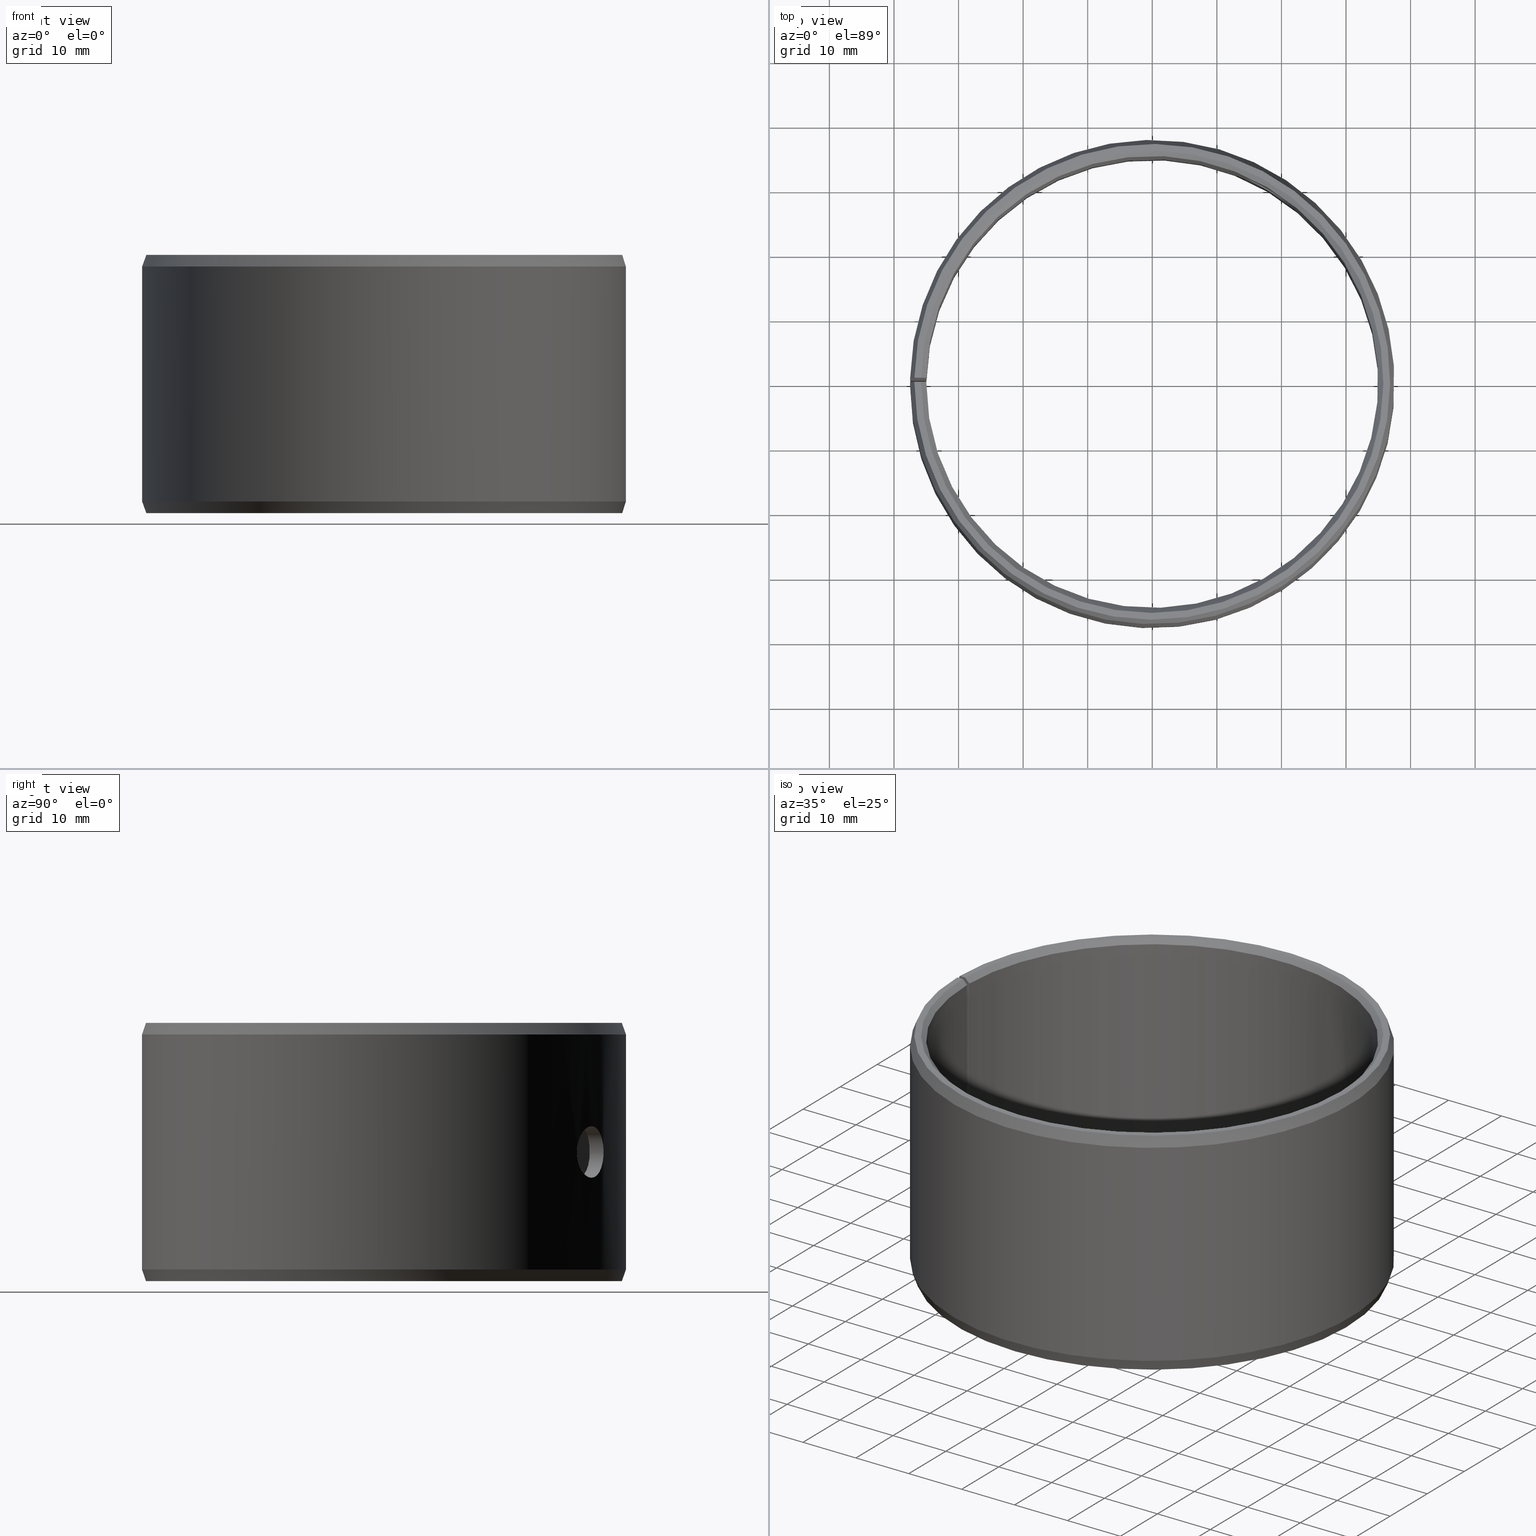
[diagram: canonical four-view strip — front | top / right | iso, engineering-drawing reading convention]
A machine part, canonical four-view strip (front | top / right | iso — engineering-drawing reading convention). The complete STEP part file that produces these views, byte-faithful:
ISO-10303-21;
HEADER;
FILE_DESCRIPTION(('STEP AP203'),'1');
FILE_NAME('440-POM7040LMB.stp','2016-09-21T01:21:44',(' '),(' '),'Spatial InterOp 3D',' ',' ');
FILE_SCHEMA(('CONFIG_CONTROL_DESIGN'));
ENDSEC;
DATA;
#1=DESIGN_CONTEXT('',#51,'design');
#2=APPLICATION_PROTOCOL_DEFINITION('INTERNATIONAL STANDARD','config_control_design',1994,#51);
#3=PRODUCT_CATEGORY_RELATIONSHIP('NONE','NONE',#52,#53);
#4=DATE_AND_TIME(#54,#55);
#5=DATE_TIME_ROLE('creation_date');
#6=DATE_TIME_ROLE('classification_date');
#7=PERSON_AND_ORGANIZATION_ROLE('creator');
#8=PERSON_AND_ORGANIZATION_ROLE('design_supplier');
#9=PERSON_AND_ORGANIZATION_ROLE('classification_officer');
#10=PERSON_AND_ORGANIZATION_ROLE('design_owner');
#11=APPROVAL_PERSON_ORGANIZATION(#56,#57,#58);
#12=APPROVAL_DATE_TIME(#4,#57);
#13=CC_DESIGN_APPROVAL(#57,(#59,#60,#61));
#14=CC_DESIGN_DATE_AND_TIME_ASSIGNMENT(#4,#5,(#61));
#15=CC_DESIGN_DATE_AND_TIME_ASSIGNMENT(#4,#6,(#59));
#16=CC_DESIGN_PERSON_AND_ORGANIZATION_ASSIGNMENT(#56,#10,(#62));
#17=CC_DESIGN_PERSON_AND_ORGANIZATION_ASSIGNMENT(#56,#7,(#61));
#18=CC_DESIGN_PERSON_AND_ORGANIZATION_ASSIGNMENT(#56,#7,(#60));
#19=CC_DESIGN_PERSON_AND_ORGANIZATION_ASSIGNMENT(#56,#8,(#60));
#20=CC_DESIGN_SECURITY_CLASSIFICATION(#59,(#60));
#21=CC_DESIGN_PERSON_AND_ORGANIZATION_ASSIGNMENT(#56,#9,(#59));
#22=SHAPE_DEFINITION_REPRESENTATION(#63,#64);
#23=DESIGN_CONTEXT('',#65,'design');
#24=APPLICATION_PROTOCOL_DEFINITION('INTERNATIONAL STANDARD','config_control_design',1994,#65);
#25=PRODUCT_CATEGORY_RELATIONSHIP('NONE','NONE',#66,#67);
#26=DATE_AND_TIME(#68,#69);
#27=DATE_TIME_ROLE('creation_date');
#28=DATE_TIME_ROLE('classification_date');
#29=PERSON_AND_ORGANIZATION_ROLE('creator');
#30=PERSON_AND_ORGANIZATION_ROLE('design_supplier');
#31=PERSON_AND_ORGANIZATION_ROLE('classification_officer');
#32=PERSON_AND_ORGANIZATION_ROLE('design_owner');
#33=APPROVAL_PERSON_ORGANIZATION(#70,#71,#72);
#34=APPROVAL_DATE_TIME(#26,#71);
#35=CC_DESIGN_APPROVAL(#71,(#73,#74,#75));
#36=CC_DESIGN_DATE_AND_TIME_ASSIGNMENT(#26,#27,(#75));
#37=CC_DESIGN_DATE_AND_TIME_ASSIGNMENT(#26,#28,(#73));
#38=CC_DESIGN_PERSON_AND_ORGANIZATION_ASSIGNMENT(#70,#32,(#76));
#39=CC_DESIGN_PERSON_AND_ORGANIZATION_ASSIGNMENT(#70,#29,(#75));
#40=CC_DESIGN_PERSON_AND_ORGANIZATION_ASSIGNMENT(#70,#29,(#74));
#41=CC_DESIGN_PERSON_AND_ORGANIZATION_ASSIGNMENT(#70,#30,(#74));
#42=CC_DESIGN_SECURITY_CLASSIFICATION(#73,(#74));
#43=CC_DESIGN_PERSON_AND_ORGANIZATION_ASSIGNMENT(#70,#31,(#73));
#44=CONTEXT_DEPENDENT_SHAPE_REPRESENTATION(#77,#78);
#45=SHAPE_DEFINITION_REPRESENTATION(#79,#80);
#46=SHAPE_REPRESENTATION_RELATIONSHIP('NONE','NONE',#80,#81);
#47= (GEOMETRIC_REPRESENTATION_CONTEXT(3)GLOBAL_UNCERTAINTY_ASSIGNED_CONTEXT((#84))GLOBAL_UNIT_ASSIGNED_CONTEXT((#86,#87,#88))REPRESENTATION_CONTEXT('NONE','WORKSPACE'));
#51=APPLICATION_CONTEXT('CONFIGURATION CONTROLLED 3D DESIGNS OF MECHANICAL PARTS AND ASSEMBLIES');
#52=PRODUCT_CATEGORY('part','NONE');
#53=PRODUCT_RELATED_PRODUCT_CATEGORY('detail',' ',(#62));
#54=CALENDAR_DATE(2016,21,8);
#55=LOCAL_TIME(3,21,44.0,#90);
#56=PERSON_AND_ORGANIZATION(#91,#92);
#57=APPROVAL(#93,'SOLID MODEL');
#58=APPROVAL_ROLE('APPROVED');
#59=SECURITY_CLASSIFICATION('','',#94);
#60=PRODUCT_DEFINITION_FORMATION_WITH_SPECIFIED_SOURCE(' ','NONE',#62,.NOT_KNOWN.);
#61=PRODUCT_DEFINITION('NONE','NONE',#60,#1);
#62=PRODUCT('','','PART--DESC',(#95));
#63=PRODUCT_DEFINITION_SHAPE('NONE','NONE',#61);
#64=SHAPE_REPRESENTATION('',(#96,#97),#98);
#65=APPLICATION_CONTEXT('CONFIGURATION CONTROLLED 3D DESIGNS OF MECHANICAL PARTS AND ASSEMBLIES');
#66=PRODUCT_CATEGORY('part','NONE');
#67=PRODUCT_RELATED_PRODUCT_CATEGORY('detail',' ',(#76));
#68=CALENDAR_DATE(2016,21,8);
#69=LOCAL_TIME(3,21,44.0,#99);
#70=PERSON_AND_ORGANIZATION(#100,#101);
#71=APPROVAL(#102,'SOLID MODEL');
#72=APPROVAL_ROLE('APPROVED');
#73=SECURITY_CLASSIFICATION('','',#103);
#74=PRODUCT_DEFINITION_FORMATION_WITH_SPECIFIED_SOURCE(' ','NONE',#76,.NOT_KNOWN.);
#75=PRODUCT_DEFINITION('440-POM7040LMB','440-POM7040LMB',#74,#23);
#76=PRODUCT('440-POM7040LMB','440-POM7040LMB','PART-440-POM7040LMB-DESC',(#104));
#77=(REPRESENTATION_RELATIONSHIP('','',#80,#64)REPRESENTATION_RELATIONSHIP_WITH_TRANSFORMATION(#107)SHAPE_REPRESENTATION_RELATIONSHIP());
#78=PRODUCT_DEFINITION_SHAPE('NAUO-PROD-DEF','NAUO-PROD-DEF',#109);
#79=PRODUCT_DEFINITION_SHAPE('NONE','NONE',#75);
#80=SHAPE_REPRESENTATION('440-POM7040LMB',(#96),#98);
#81=ADVANCED_BREP_SHAPE_REPRESENTATION('',(#110),#47);
#84=UNCERTAINTY_MEASURE_WITH_UNIT(LENGTH_MEASURE(1.0E-006),#86,'','');
#86= (CONVERSION_BASED_UNIT('METRE',#113)LENGTH_UNIT()NAMED_UNIT(#116));
#87= (NAMED_UNIT(#118)PLANE_ANGLE_UNIT()SI_UNIT($,.RADIAN.));
#88= (NAMED_UNIT(#118)SOLID_ANGLE_UNIT()SI_UNIT($,.STERADIAN.));
#90=COORDINATED_UNIVERSAL_TIME_OFFSET(1,0,.AHEAD.);
#91=PERSON('','UNSPECIFIED',$,$,$,$);
#92=ORGANIZATION('UNSPECIFIED','UNSPECIFIED','UNSPECIFIED');
#93=APPROVAL_STATUS('approved');
#94=SECURITY_CLASSIFICATION_LEVEL('unclassified');
#95=MECHANICAL_CONTEXT('',#51,'mechanical');
#96=AXIS2_PLACEMENT_3D('',#124,#125,#126);
#97=AXIS2_PLACEMENT_3D('',#127,#128,#129);
#98= (GEOMETRIC_REPRESENTATION_CONTEXT(3)GLOBAL_UNCERTAINTY_ASSIGNED_CONTEXT((#132))GLOBAL_UNIT_ASSIGNED_CONTEXT((#134,#135,#136))REPRESENTATION_CONTEXT('NONE','WORKSPACE'));
#99=COORDINATED_UNIVERSAL_TIME_OFFSET(1,0,.AHEAD.);
#100=PERSON('','UNSPECIFIED',$,$,$,$);
#101=ORGANIZATION('UNSPECIFIED','UNSPECIFIED','UNSPECIFIED');
#102=APPROVAL_STATUS('approved');
#103=SECURITY_CLASSIFICATION_LEVEL('unclassified');
#104=MECHANICAL_CONTEXT('',#65,'mechanical');
#107=ITEM_DEFINED_TRANSFORMATION('','',#96,#97);
#109=NEXT_ASSEMBLY_USAGE_OCCURRENCE('440-POM7040LMB','440-POM7040LMB','440-POM7040LMB',#61,#75,$);
#110=MANIFOLD_SOLID_BREP('',#138);
#113=LENGTH_MEASURE_WITH_UNIT(LENGTH_MEASURE(1.0),#139);
#116=DIMENSIONAL_EXPONENTS(1.0,0.0,0.0,0.0,0.0,0.0,0.0);
#118=DIMENSIONAL_EXPONENTS(0.0,0.0,0.0,0.0,0.0,0.0,0.0);
#124=CARTESIAN_POINT('',(0.0,0.0,0.0));
#125=DIRECTION('',(0.0,0.0,1.0));
#126=DIRECTION('',(1.0,0.0,0.0));
#127=CARTESIAN_POINT('',(0.0,0.0,0.0));
#128=DIRECTION('',(5.48707263966374E-016,-5.48707263966376E-016,1.0));
#129=DIRECTION('',(1.39349996950756E-015,1.0,5.48707263966375E-016));
#132=UNCERTAINTY_MEASURE_WITH_UNIT(LENGTH_MEASURE(1.0E-006),#134,'','');
#134= (CONVERSION_BASED_UNIT('METRE',#142)LENGTH_UNIT()NAMED_UNIT(#145));
#135= (NAMED_UNIT(#147)PLANE_ANGLE_UNIT()SI_UNIT($,.RADIAN.));
#136= (NAMED_UNIT(#147)SOLID_ANGLE_UNIT()SI_UNIT($,.STERADIAN.));
#138=CLOSED_SHELL('',(#153,#154,#155,#156,#157,#158,#159,#160,#161,#162,#163));
#139= (NAMED_UNIT(#116)LENGTH_UNIT()SI_UNIT($,.METRE.));
#142=LENGTH_MEASURE_WITH_UNIT(LENGTH_MEASURE(1.0),#165);
#145=DIMENSIONAL_EXPONENTS(1.0,0.0,0.0,0.0,0.0,0.0,0.0);
#147=DIMENSIONAL_EXPONENTS(0.0,0.0,0.0,0.0,0.0,0.0,0.0);
#153=ADVANCED_FACE('',(#166),#167,.F.);
#154=ADVANCED_FACE('',(#168),#169,.T.);
#155=ADVANCED_FACE('',(#170),#171,.T.);
#156=ADVANCED_FACE('',(#172),#173,.T.);
#157=ADVANCED_FACE('',(#174),#175,.T.);
#158=ADVANCED_FACE('',(#176),#177,.F.);
#159=ADVANCED_FACE('',(#178),#179,.T.);
#160=ADVANCED_FACE('',(#180),#181,.F.);
#161=ADVANCED_FACE('',(#182,#183),#184,.F.);
#162=ADVANCED_FACE('',(#185,#186),#187,.T.);
#163=ADVANCED_FACE('',(#188,#189),#190,.F.);
#165= (NAMED_UNIT(#145)LENGTH_UNIT()SI_UNIT($,.METRE.));
#166=FACE_OUTER_BOUND('',#192,.T.);
#167=CONICAL_SURFACE('',#193,0.035,0.785398163397448);
#168=FACE_OUTER_BOUND('',#194,.T.);
#169=PLANE('',#195);
#170=FACE_OUTER_BOUND('',#196,.T.);
#171=CONICAL_SURFACE('',#197,0.0368448535783208,0.349065850398873);
#172=FACE_OUTER_BOUND('',#198,.T.);
#173=CONICAL_SURFACE('',#199,0.0375,0.349065850398874);
#174=FACE_OUTER_BOUND('',#200,.T.);
#175=PLANE('',#201);
#176=FACE_OUTER_BOUND('',#202,.T.);
#177=CONICAL_SURFACE('',#203,0.0358,0.785398163397453);
#178=FACE_OUTER_BOUND('',#204,.T.);
#179=PLANE('',#205);
#180=FACE_OUTER_BOUND('',#206,.T.);
#181=PLANE('',#207);
#182=FACE_OUTER_BOUND('',#208,.T.);
#183=FACE_BOUND('',#209,.T.);
#184=CYLINDRICAL_SURFACE('',#210,0.035);
#185=FACE_OUTER_BOUND('',#211,.T.);
#186=FACE_BOUND('',#212,.T.);
#187=CYLINDRICAL_SURFACE('',#213,0.0375);
#188=FACE_OUTER_BOUND('',#214,.T.);
#189=FACE_OUTER_BOUND('',#215,.T.);
#190=CYLINDRICAL_SURFACE('',#216,0.004);
#192=EDGE_LOOP('',(#217,#218,#219,#220));
#193=AXIS2_PLACEMENT_3D('',#221,#222,#223);
#194=EDGE_LOOP('',(#224,#225,#226,#227));
#195=AXIS2_PLACEMENT_3D('',#228,#229,#230);
#196=EDGE_LOOP('',(#231,#232,#233,#234));
#197=AXIS2_PLACEMENT_3D('',#235,#236,#237);
#198=EDGE_LOOP('',(#238,#239,#240,#241));
#199=AXIS2_PLACEMENT_3D('',#242,#243,#244);
#200=EDGE_LOOP('',(#245,#246,#247,#248));
#201=AXIS2_PLACEMENT_3D('',#249,#250,#251);
#202=EDGE_LOOP('',(#252,#253,#254,#255));
#203=AXIS2_PLACEMENT_3D('',#256,#257,#258);
#204=EDGE_LOOP('',(#259,#260,#261,#262,#263,#264,#265,#266));
#205=AXIS2_PLACEMENT_3D('',#267,#268,#269);
#206=EDGE_LOOP('',(#270,#271,#272,#273,#274,#275,#276,#277));
#207=AXIS2_PLACEMENT_3D('',#278,#279,#280);
#208=EDGE_LOOP('',(#281,#282,#283,#284));
#209=EDGE_LOOP('',(#285));
#210=AXIS2_PLACEMENT_3D('',#286,#287,#288);
#211=EDGE_LOOP('',(#289,#290,#291,#292));
#212=EDGE_LOOP('',(#293));
#213=AXIS2_PLACEMENT_3D('',#294,#295,#296);
#214=EDGE_LOOP('',(#297));
#215=EDGE_LOOP('',(#298));
#216=AXIS2_PLACEMENT_3D('',#299,#300,#301);
#217=ORIENTED_EDGE('',*,*,#302,.T.);
#218=ORIENTED_EDGE('',*,*,#303,.F.);
#219=ORIENTED_EDGE('',*,*,#304,.F.);
#220=ORIENTED_EDGE('',*,*,#305,.T.);
#221=CARTESIAN_POINT('',(-6.93889390390723E-018,-6.93889390390723E-018,0.0008));
#222=DIRECTION('',(6.12323399573677E-017,-0.0,-1.0));
#223=DIRECTION('',(-1.0,0.0,-6.12323399573677E-017));
#224=ORIENTED_EDGE('',*,*,#306,.T.);
#225=ORIENTED_EDGE('',*,*,#307,.F.);
#226=ORIENTED_EDGE('',*,*,#302,.F.);
#227=ORIENTED_EDGE('',*,*,#308,.T.);
#228=CARTESIAN_POINT('',(0.000624796150454745,0.0357945474865988,-1.59523783355753E-020));
#229=DIRECTION('',(6.12323399573677E-017,0.0,-1.0));
#230=DIRECTION('',(-1.0,0.0,-6.12323399573677E-017));
#231=ORIENTED_EDGE('',*,*,#309,.T.);
#232=ORIENTED_EDGE('',*,*,#310,.F.);
#233=ORIENTED_EDGE('',*,*,#306,.F.);
#234=ORIENTED_EDGE('',*,*,#311,.T.);
#235=CARTESIAN_POINT('',(-6.93889390390723E-018,-6.93889390390723E-018,-3.61111864572607E-035));
#236=DIRECTION('',(-6.12323399573677E-017,0.0,1.0));
#237=DIRECTION('',(1.0,0.0,6.12323399573677E-017));
#238=ORIENTED_EDGE('',*,*,#312,.T.);
#239=ORIENTED_EDGE('',*,*,#313,.F.);
#240=ORIENTED_EDGE('',*,*,#314,.F.);
#241=ORIENTED_EDGE('',*,*,#315,.T.);
#242=CARTESIAN_POINT('',(-8.67361737988404E-018,-6.93889390390723E-018,0.0382));
#243=DIRECTION('',(6.12323399573677E-017,-0.0,-1.0));
#244=DIRECTION('',(-1.0,0.0,-6.12323399573677E-017));
#245=ORIENTED_EDGE('',*,*,#316,.T.);
#246=ORIENTED_EDGE('',*,*,#317,.T.);
#247=ORIENTED_EDGE('',*,*,#318,.F.);
#248=ORIENTED_EDGE('',*,*,#312,.F.);
#249=CARTESIAN_POINT('',(0.000643031359771049,0.0368392419286588,0.04));
#250=DIRECTION('',(-6.12323399573677E-017,0.0,1.0));
#251=DIRECTION('',(1.0,0.0,6.12323399573677E-017));
#252=ORIENTED_EDGE('',*,*,#319,.T.);
#253=ORIENTED_EDGE('',*,*,#320,.F.);
#254=ORIENTED_EDGE('',*,*,#317,.F.);
#255=ORIENTED_EDGE('',*,*,#321,.T.);
#256=CARTESIAN_POINT('',(-8.67361737988404E-018,-6.93889390390723E-018,0.04));
#257=DIRECTION('',(-6.12323399573677E-017,0.0,1.0));
#258=DIRECTION('',(1.0,0.0,6.12323399573677E-017));
#259=ORIENTED_EDGE('',*,*,#320,.T.);
#260=ORIENTED_EDGE('',*,*,#322,.T.);
#261=ORIENTED_EDGE('',*,*,#303,.T.);
#262=ORIENTED_EDGE('',*,*,#307,.T.);
#263=ORIENTED_EDGE('',*,*,#310,.T.);
#264=ORIENTED_EDGE('',*,*,#323,.T.);
#265=ORIENTED_EDGE('',*,*,#313,.T.);
#266=ORIENTED_EDGE('',*,*,#318,.T.);
#267=CARTESIAN_POINT('',(-6.93889390390723E-018,-0.014,0.0));
#268=DIRECTION('',(1.0,0.0,0.0));
#269=DIRECTION('',(0.0,0.0,-1.0));
#270=ORIENTED_EDGE('',*,*,#321,.F.);
#271=ORIENTED_EDGE('',*,*,#316,.F.);
#272=ORIENTED_EDGE('',*,*,#315,.F.);
#273=ORIENTED_EDGE('',*,*,#324,.F.);
#274=ORIENTED_EDGE('',*,*,#311,.F.);
#275=ORIENTED_EDGE('',*,*,#308,.F.);
#276=ORIENTED_EDGE('',*,*,#305,.F.);
#277=ORIENTED_EDGE('',*,*,#325,.F.);
#278=CARTESIAN_POINT('',(-0.000244333690121977,-0.0139978677321895,-1.49611235765866E-020));
#279=DIRECTION('',(0.999847695156391,-0.0174524064372836,-9.3259819610035E-021));
#280=DIRECTION('',(9.32598196100733E-021,1.0686516840419E-018,-1.0));
#281=ORIENTED_EDGE('',*,*,#304,.T.);
#282=ORIENTED_EDGE('',*,*,#322,.F.);
#283=ORIENTED_EDGE('',*,*,#319,.F.);
#284=ORIENTED_EDGE('',*,*,#325,.T.);
#285=ORIENTED_EDGE('',*,*,#326,.T.);
#286=CARTESIAN_POINT('',(-6.93889390390723E-018,-6.93889390390723E-018,0.0));
#287=DIRECTION('',(6.12323399573677E-017,0.0,-1.0));
#288=DIRECTION('',(-1.0,0.0,-6.12323399573677E-017));
#289=ORIENTED_EDGE('',*,*,#314,.T.);
#290=ORIENTED_EDGE('',*,*,#323,.F.);
#291=ORIENTED_EDGE('',*,*,#309,.F.);
#292=ORIENTED_EDGE('',*,*,#324,.T.);
#293=ORIENTED_EDGE('',*,*,#327,.T.);
#294=CARTESIAN_POINT('',(-6.93889390390723E-018,-6.93889390390723E-018,0.0));
#295=DIRECTION('',(6.12323399573677E-017,0.0,-1.0));
#296=DIRECTION('',(-1.0,0.0,-6.12323399573677E-017));
#297=ORIENTED_EDGE('',*,*,#326,.F.);
#298=ORIENTED_EDGE('',*,*,#327,.F.);
#299=CARTESIAN_POINT('',(0.0278579372728771,-0.0167387374344795,0.02));
#300=DIRECTION('',(0.85716730070391,-0.515038074907062,0.0));
#301=DIRECTION('',(-0.515038074907062,-0.85716730070391,0.0));
#302=EDGE_CURVE('',#328,#329,#330,.T.);
#303=EDGE_CURVE('',#331,#329,#332,.T.);
#304=EDGE_CURVE('',#333,#331,#334,.T.);
#305=EDGE_CURVE('',#333,#328,#335,.T.);
#306=EDGE_CURVE('',#336,#337,#338,.T.);
#307=EDGE_CURVE('',#329,#337,#339,.T.);
#308=EDGE_CURVE('',#328,#336,#340,.T.);
#309=EDGE_CURVE('',#341,#342,#343,.T.);
#310=EDGE_CURVE('',#337,#342,#344,.T.);
#311=EDGE_CURVE('',#336,#341,#345,.T.);
#312=EDGE_CURVE('',#346,#347,#348,.T.);
#313=EDGE_CURVE('',#349,#347,#350,.T.);
#314=EDGE_CURVE('',#351,#349,#352,.T.);
#315=EDGE_CURVE('',#351,#346,#353,.T.);
#316=EDGE_CURVE('',#346,#354,#355,.T.);
#317=EDGE_CURVE('',#354,#356,#357,.T.);
#318=EDGE_CURVE('',#347,#356,#358,.T.);
#319=EDGE_CURVE('',#359,#360,#361,.T.);
#320=EDGE_CURVE('',#356,#360,#362,.T.);
#321=EDGE_CURVE('',#354,#359,#363,.T.);
#322=EDGE_CURVE('',#360,#331,#364,.T.);
#323=EDGE_CURVE('',#342,#349,#365,.T.);
#324=EDGE_CURVE('',#341,#351,#366,.T.);
#325=EDGE_CURVE('',#359,#333,#367,.T.);
#326=EDGE_CURVE('',#368,#368,#369,.T.);
#327=EDGE_CURVE('',#370,#370,#371,.T.);
#328=VERTEX_POINT('',#372);
#329=VERTEX_POINT('',#373);
#330=CIRCLE('',#374,0.0358);
#331=VERTEX_POINT('',#375);
#332=LINE('',#376,#377);
#333=VERTEX_POINT('',#378);
#334=CIRCLE('',#379,0.035);
#335=LINE('',#380,#381);
#336=VERTEX_POINT('',#382);
#337=VERTEX_POINT('',#383);
#338=CIRCLE('',#384,0.0368448535783208);
#339=LINE('',#385,#386);
#340=LINE('',#387,#388);
#341=VERTEX_POINT('',#389);
#342=VERTEX_POINT('',#390);
#343=CIRCLE('',#391,0.0375);
#344=LINE('',#392,#393);
#345=LINE('',#394,#395);
#346=VERTEX_POINT('',#396);
#347=VERTEX_POINT('',#397);
#348=CIRCLE('',#398,0.0368448535783208);
#349=VERTEX_POINT('',#399);
#350=LINE('',#400,#401);
#351=VERTEX_POINT('',#402);
#352=CIRCLE('',#403,0.0375);
#353=LINE('',#404,#405);
#354=VERTEX_POINT('',#406);
#355=LINE('',#407,#408);
#356=VERTEX_POINT('',#409);
#357=CIRCLE('',#410,0.0358);
#358=LINE('',#411,#412);
#359=VERTEX_POINT('',#413);
#360=VERTEX_POINT('',#414);
#361=CIRCLE('',#415,0.035);
#362=LINE('',#416,#417);
#363=LINE('',#418,#419);
#364=LINE('',#420,#421);
#365=LINE('',#422,#423);
#366=LINE('',#424,#425);
#367=LINE('',#426,#427);
#368=VERTEX_POINT('',#428);
#369=B_SPLINE_CURVE_WITH_KNOTS('',3,(#429,#430,#431,#432,#433,#434,#435,#436,#437,#438,#439,#440,#441,#442,#443,#444,#445,#446,#447,#448,#449,#450,#451,#452,#453,#454,#455,#456,#457,#458,#459,#460,#461,#462,#463,#464,#465,#466,#467,#468,#469,#470,#471,#472,#473,#474,#475,#476,#477,#478,#479,#480,#481,#482,#483,#484,#485,#486,#487,#488,#489,#490,#491,#492,#493,#494),.UNSPECIFIED.,.T.,.F.,(2,2,2,2,2,2,2,2,2,2,2,2,2,2,2,2,2,2,2,2,2,2,2,2,2,2,2,2,2,2,2,2,2,2,2),(-0.00078215963741945,0.0,0.00078215963741945,0.0015643192748389,0.00234647891225835,0.0031286385496778,0.00391079818709725,0.0046929578245167,0.00547511746193615,0.0062572770993556,0.00703943673677505,0.0078215963741945,0.00860375601161395,0.0093859156490334,0.0101680752864529,0.0109502349238723,0.0117323945612918,0.0125145541987112,0.0132967138361307,0.0140788734735501,0.0148610331109696,0.015643192748389,0.0164253523858085,0.0172075120232279,0.0179896716606474,0.0187718312980668,0.0195539909354863,0.0203361505729057,0.0211183102103252,0.0219004698477446,0.0226826294851641,0.0234647891225835,0.024246948760003,0.0250291083974224,0.0258112680348419),.UNSPECIFIED.);
#370=VERTEX_POINT('',#495);
#371=B_SPLINE_CURVE_WITH_KNOTS('',3,(#496,#497,#498,#499,#500,#501,#502,#503,#504,#505,#506,#507,#508,#509,#510,#511,#512,#513,#514,#515,#516,#517,#518,#519,#520,#521,#522,#523,#524,#525,#526,#527,#528,#529,#530,#531,#532,#533,#534,#535,#536,#537,#538,#539,#540,#541,#542,#543,#544,#545,#546,#547,#548,#549,#550,#551,#552,#553,#554,#555,#556,#557,#558,#559,#560,#561),.UNSPECIFIED.,.T.,.F.,(2,2,2,2,2,2,2,2,2,2,2,2,2,2,2,2,2,2,2,2,2,2,2,2,2,2,2,2,2,2,2,2,2,2,2),(-0.000782077601824386,0.0,0.000782077601824386,0.00156415520364877,0.00234623280547316,0.00312831040729754,0.00391038800912193,0.00469246561094632,0.0054745432127707,0.00625662081459509,0.00703869841641948,0.00782077601824386,0.00860285362006825,0.00938493122189263,0.010167008823717,0.0109490864255414,0.0117311640273658,0.0125132416291902,0.0132953192310146,0.014077396832839,0.0148594744346633,0.0156415520364877,0.0164236296383121,0.0172057072401365,0.0179877848419609,0.0187698624437853,0.0195519400456097,0.020334017647434,0.0211160952492584,0.0218981728510828,0.0226802504529072,0.0234623280547316,0.024244405656556,0.0250264832583804,0.0258085608602047),.UNSPECIFIED.);
#372=CARTESIAN_POINT('',(0.000624796150454745,0.0357945474865988,-7.01624869598505E-020));
#373=CARTESIAN_POINT('',(-6.93889390390723E-018,0.0358,-1.0842021724855E-019));
#374=AXIS2_PLACEMENT_3D('',#562,#563,#564);
#375=CARTESIAN_POINT('',(-6.93889390390723E-018,0.035,0.0008));
#376=CARTESIAN_POINT('',(-6.93889390390723E-018,0.035,0.0008));
#377=VECTOR('',#565,1.0);
#378=CARTESIAN_POINT('',(0.000610834225304918,0.0349946693304737,0.0008));
#379=AXIS2_PLACEMENT_3D('',#566,#567,#568);
#380=CARTESIAN_POINT('',(0.000610834225304918,0.0349946693304737,0.0008));
#381=VECTOR('',#569,1.0);
#382=CARTESIAN_POINT('',(0.00064303135977105,0.0368392419286588,3.93743148247498E-020));
#383=CARTESIAN_POINT('',(-6.93889390390723E-018,0.0368448535783208,0.0));
#384=AXIS2_PLACEMENT_3D('',#570,#571,#572);
#385=CARTESIAN_POINT('',(-6.93889390390723E-018,0.0358,-1.27957659026827E-019));
#386=VECTOR('',#573,1.0);
#387=CARTESIAN_POINT('',(0.000624796150454745,0.0357945474865988,-8.96999287381269E-020));
#388=VECTOR('',#574,1.0);
#389=CARTESIAN_POINT('',(0.000654465241398127,0.0374942885683647,0.0018));
#390=CARTESIAN_POINT('',(-6.93889390390723E-018,0.0375,0.0018));
#391=AXIS2_PLACEMENT_3D('',#575,#576,#577);
#392=CARTESIAN_POINT('',(-6.93889390390723E-018,0.0368448535783208,0.0));
#393=VECTOR('',#578,1.0);
#394=CARTESIAN_POINT('',(0.00064303135977105,0.0368392419286588,3.93743148247498E-020));
#395=VECTOR('',#579,1.0);
#396=CARTESIAN_POINT('',(0.000643031359771049,0.0368392419286588,0.04));
#397=CARTESIAN_POINT('',(-8.67361737988404E-018,0.0368448535783208,0.04));
#398=AXIS2_PLACEMENT_3D('',#580,#581,#582);
#399=CARTESIAN_POINT('',(-8.67361737988404E-018,0.0375,0.0382));
#400=CARTESIAN_POINT('',(-8.67361737988404E-018,0.0375,0.0382));
#401=VECTOR('',#583,1.0);
#402=CARTESIAN_POINT('',(0.000654465241398125,0.0374942885683647,0.0382));
#403=AXIS2_PLACEMENT_3D('',#584,#585,#586);
#404=CARTESIAN_POINT('',(0.000654465241398125,0.0374942885683647,0.0382));
#405=VECTOR('',#587,1.0);
#406=CARTESIAN_POINT('',(0.000624796150454743,0.0357945474865988,0.04));
#407=CARTESIAN_POINT('',(0.000643031359771049,0.0368392419286588,0.04));
#408=VECTOR('',#588,1.0);
#409=CARTESIAN_POINT('',(-8.67361737988404E-018,0.0358,0.04));
#410=AXIS2_PLACEMENT_3D('',#589,#590,#591);
#411=CARTESIAN_POINT('',(-8.67361737988404E-018,0.0368448535783208,0.04));
#412=VECTOR('',#592,1.0);
#413=CARTESIAN_POINT('',(0.000610834225304916,0.0349946693304737,0.0392));
#414=CARTESIAN_POINT('',(-8.67361737988404E-018,0.035,0.0392));
#415=AXIS2_PLACEMENT_3D('',#593,#594,#595);
#416=CARTESIAN_POINT('',(-8.67361737988404E-018,0.0358,0.04));
#417=VECTOR('',#596,1.0);
#418=CARTESIAN_POINT('',(0.000624796150454743,0.0357945474865988,0.04));
#419=VECTOR('',#597,1.0);
#420=CARTESIAN_POINT('',(-8.67361737988404E-018,0.035,0.0392));
#421=VECTOR('',#598,1.0);
#422=CARTESIAN_POINT('',(-6.93889390390723E-018,0.0375,0.0018));
#423=VECTOR('',#599,1.0);
#424=CARTESIAN_POINT('',(0.000654465241398127,0.0374942885683647,0.0018));
#425=VECTOR('',#600,1.0);
#426=CARTESIAN_POINT('',(0.000610834225304916,0.0349946693304737,0.0392));
#427=VECTOR('',#601,1.0);
#428=CARTESIAN_POINT('',(0.0277441353064831,-0.0213368919033574,0.02));
#429=CARTESIAN_POINT('',(0.0277441353064831,-0.0213368919033574,0.0202644906927151));
#430=CARTESIAN_POINT('',(0.0277441353064831,-0.0213368919033574,0.0197355093072849));
#431=CARTESIAN_POINT('',(0.0277600983842469,-0.0213161806618129,0.0194754819844249));
#432=CARTESIAN_POINT('',(0.0278223311044548,-0.0212348890325379,0.0189639755608542));
#433=CARTESIAN_POINT('',(0.0278693610342522,-0.0211733066380689,0.0187098295213955));
#434=CARTESIAN_POINT('',(0.0279910809169324,-0.021012129533889,0.0182255319587692));
#435=CARTESIAN_POINT('',(0.0280651880822234,-0.0209133085161592,0.0179958699971985));
#436=CARTESIAN_POINT('',(0.0282384388133713,-0.020678777250266,0.0175612259001021));
#437=CARTESIAN_POINT('',(0.0283383934748921,-0.0205419002704432,0.0173556012914139));
#438=CARTESIAN_POINT('',(0.02855391886955,-0.0202412432585007,0.0169869602959644));
#439=CARTESIAN_POINT('',(0.028670294028316,-0.0200764093236153,0.0168214607735883));
#440=CARTESIAN_POINT('',(0.028919306931437,-0.0197160254007945,0.0165290385253244));
#441=CARTESIAN_POINT('',(0.02904994674816,-0.0195232834468024,0.0164049056620229));
#442=CARTESIAN_POINT('',(0.0293158651970227,-0.0191216644245504,0.0162053440501078));
#443=CARTESIAN_POINT('',(0.0294531105683948,-0.0189098118518584,0.0161284413093861));
#444=CARTESIAN_POINT('',(0.0297289706066316,-0.0184730888888893,0.0160256053084662));
#445=CARTESIAN_POINT('',(0.0298652300578896,-0.0182520192301727,0.0160001445404196));
#446=CARTESIAN_POINT('',(0.0301342095209678,-0.0178044261052043,0.0159998566751225));
#447=CARTESIAN_POINT('',(0.0302682472143654,-0.0175755249961741,0.0160258678987317));
#448=CARTESIAN_POINT('',(0.0305227343440561,-0.0171297564630457,0.0161279921359165));
#449=CARTESIAN_POINT('',(0.0306440185849767,-0.0169116212311517,0.0162035516361826));
#450=CARTESIAN_POINT('',(0.0308754149105193,-0.0164853741785141,0.0164039925858847));
#451=CARTESIAN_POINT('',(0.0309849322496476,-0.0162782395335752,0.0165291432583467));
#452=CARTESIAN_POINT('',(0.0311844341150744,-0.015892708320179,0.0168185282115646));
#453=CARTESIAN_POINT('',(0.0312757662340601,-0.01571182817499,0.0169838429697968));
#454=CARTESIAN_POINT('',(0.0314421710728443,-0.0153761170766217,0.0173570050418436));
#455=CARTESIAN_POINT('',(0.0315145773865522,-0.015226706413688,0.0175588058894702));
#456=CARTESIAN_POINT('',(0.0316401022214241,-0.0149641273544256,0.0179917156731102));
#457=CARTESIAN_POINT('',(0.0316936382480192,-0.0148500333920537,0.0182255927290533));
#458=CARTESIAN_POINT('',(0.0317787995870508,-0.0146669047159745,0.0187098798235816));
#459=CARTESIAN_POINT('',(0.0318105720758687,-0.0145976082845992,0.0189591979092412));
#460=CARTESIAN_POINT('',(0.0318534827348088,-0.0145037340394767,0.0194721119193354));
#461=CARTESIAN_POINT('',(0.031864399348708,-0.0144796427495852,0.019737370934648));
#462=CARTESIAN_POINT('',(0.0318644802324,-0.0144794647528335,0.0202596539556129));
#463=CARTESIAN_POINT('',(0.0318539986643011,-0.0145026004772564,0.0205193448436002));
#464=CARTESIAN_POINT('',(0.0318111877485112,-0.0145962661505327,0.0210357574848917));
#465=CARTESIAN_POINT('',(0.0317790205520535,-0.0146664202653689,0.0212882392743809));
#466=CARTESIAN_POINT('',(0.0316945643661027,-0.0148480510603658,0.021769756640545));
#467=CARTESIAN_POINT('',(0.0316416254080515,-0.0149609173953919,0.0220024848245645));
#468=CARTESIAN_POINT('',(0.0315151395280451,-0.0152255537929839,0.0224397928113926));
#469=CARTESIAN_POINT('',(0.031442743116787,-0.01537491647091,0.0226411636416769));
#470=CARTESIAN_POINT('',(0.0312786350490673,-0.015706086102622,0.0230102608636175));
#471=CARTESIAN_POINT('',(0.0311857841710337,-0.015890066216429,0.0231792633258152));
#472=CARTESIAN_POINT('',(0.0309858230222375,-0.0162765509356059,0.0234698120113534));
#473=CARTESIAN_POINT('',(0.0308784066662397,-0.0164797664315252,0.0235928701781512));
#474=CARTESIAN_POINT('',(0.0306473026034012,-0.0169056660034101,0.0237941347632759));
#475=CARTESIAN_POINT('',(0.0305237845012044,-0.0171278716129492,0.0238713701850978));
#476=CARTESIAN_POINT('',(0.030270230363101,-0.0175720960625201,0.0239735499605158));
#477=CARTESIAN_POINT('',(0.0301389306104832,-0.0177964823292215,0.0239997532188342));
#478=CARTESIAN_POINT('',(0.0298665986807109,-0.0182498275302308,0.0240002433455477));
#479=CARTESIAN_POINT('',(0.0297300346546583,-0.0184713428697725,0.0239744975052916));
#480=CARTESIAN_POINT('',(0.0294568024214224,-0.0189040275889865,0.0238732237264552));
#481=CARTESIAN_POINT('',(0.029318586542389,-0.019117512662649,0.0237964581524256));
#482=CARTESIAN_POINT('',(0.0290508681064211,-0.0195219330373154,0.0235960226002772));
#483=CARTESIAN_POINT('',(0.0289217512047738,-0.0197124271220377,0.0234733430100601));
#484=CARTESIAN_POINT('',(0.0286740830921163,-0.0200709848940925,0.0231834655030852));
#485=CARTESIAN_POINT('',(0.0285551077616006,-0.0202395671901665,0.0230148369348366));
#486=CARTESIAN_POINT('',(0.028339448207903,-0.0205404463095004,0.0226464365940402));
#487=CARTESIAN_POINT('',(0.0282413636567559,-0.0206747915524752,0.0224453571951132));
#488=CARTESIAN_POINT('',(0.0280666292693263,-0.0209113832251631,0.0220084815747806));
#489=CARTESIAN_POINT('',(0.0279916315437783,-0.0210113939270624,0.0217760725134221));
#490=CARTESIAN_POINT('',(0.0278704393857014,-0.0211718851236441,0.021295039528163));
#491=CARTESIAN_POINT('',(0.0278233832925275,-0.0212335124682107,0.0210431791992438));
#492=CARTESIAN_POINT('',(0.0277601014081443,-0.0213161788177455,0.0205260115442673));
#493=CARTESIAN_POINT('',(0.0277441353064831,-0.0213368919033574,0.0202644906927151));
#494=CARTESIAN_POINT('',(0.0277441353064831,-0.0213368919033574,0.0197355093072849));
#495=CARTESIAN_POINT('',(0.0299002359972281,-0.022632407899074,0.02));
#496=CARTESIAN_POINT('',(0.0299002359972281,-0.022632407899074,0.0197355392661107));
#497=CARTESIAN_POINT('',(0.0299002359972281,-0.022632407899074,0.0202644607338893));
#498=CARTESIAN_POINT('',(0.0299160211264666,-0.0226115964737685,0.0205244642782662));
#499=CARTESIAN_POINT('',(0.0299775801417636,-0.0225299201946184,0.0210359332318231));
#500=CARTESIAN_POINT('',(0.03002410514492,-0.0224680504932056,0.021290063132947));
#501=CARTESIAN_POINT('',(0.030144588861717,-0.0223061414206155,0.0217743754194864));
#502=CARTESIAN_POINT('',(0.0302179669922118,-0.0222068840967412,0.0220040488024656));
#503=CARTESIAN_POINT('',(0.0303896221603777,-0.0219713926590459,0.0224387146687194));
#504=CARTESIAN_POINT('',(0.0304887148054793,-0.0218339749100416,0.022644371389618));
#505=CARTESIAN_POINT('',(0.0307025481173264,-0.0215322486044871,0.023013058555995));
#506=CARTESIAN_POINT('',(0.0308180810304827,-0.0213668862923477,0.0231785683168351));
#507=CARTESIAN_POINT('',(0.0310655030248537,-0.0210055342718132,0.0234709894344505));
#508=CARTESIAN_POINT('',(0.0311954386377228,-0.0208123184576056,0.0235951396881041));
#509=CARTESIAN_POINT('',(0.0314601560306079,-0.0204099626141382,0.0237946917517397));
#510=CARTESIAN_POINT('',(0.0315968955748299,-0.0201978436699623,0.0238715775624032));
#511=CARTESIAN_POINT('',(0.031872088993181,-0.0197607348571274,0.0239744020432396));
#512=CARTESIAN_POINT('',(0.0320081705176907,-0.0195395797414021,0.0239998561652057));
#513=CARTESIAN_POINT('',(0.0322771163523167,-0.0190920380352436,0.0240001426307614));
#514=CARTESIAN_POINT('',(0.0324113075264821,-0.0188632712763869,0.0239741387852273));
#515=CARTESIAN_POINT('',(0.0326664398176842,-0.0184179143352437,0.0238720276889507));
#516=CARTESIAN_POINT('',(0.0327881975796819,-0.0182000792372808,0.0237964774350061));
#517=CARTESIAN_POINT('',(0.0330207912922839,-0.0177745921809472,0.0235960673788763));
#518=CARTESIAN_POINT('',(0.0331310638938191,-0.017567859803304,0.0234709049632947));
#519=CARTESIAN_POINT('',(0.0333321650703368,-0.0171832437138246,0.023181505286208));
#520=CARTESIAN_POINT('',(0.0334243280810102,-0.0170029227069424,0.0230162445191473));
#521=CARTESIAN_POINT('',(0.0335925205995159,-0.0166681627066801,0.0226429876448468));
#522=CARTESIAN_POINT('',(0.033665793647002,-0.0165192460634599,0.0224411492827605));
#523=CARTESIAN_POINT('',(0.0337929142118309,-0.0162576167213862,0.0220082112397767));
#524=CARTESIAN_POINT('',(0.0338471853474452,-0.0161439842540904,0.0217743580475093));
#525=CARTESIAN_POINT('',(0.0339335823147639,-0.01596158434579,0.0212900138871279));
#526=CARTESIAN_POINT('',(0.0339658384664184,-0.0158925918319794,0.0210406942656988));
#527=CARTESIAN_POINT('',(0.0340094078230646,-0.0157991404003257,0.0205278447022407));
#528=CARTESIAN_POINT('',(0.0340204996564851,-0.0157751577847106,0.0202626057229153));
#529=CARTESIAN_POINT('',(0.0340205813053998,-0.0157749817005315,0.0197403504696506));
#530=CARTESIAN_POINT('',(0.0340099309829519,-0.015798013797005,0.0194806937339121));
#531=CARTESIAN_POINT('',(0.0339664673372392,-0.0158912473400856,0.0189643897107889));
#532=CARTESIAN_POINT('',(0.0339338026164628,-0.0159611106945182,0.0187118456145654));
#533=CARTESIAN_POINT('',(0.0338481317972984,-0.0161419945622725,0.0182303317355849));
#534=CARTESIAN_POINT('',(0.0337944806508309,-0.016254370774336,0.0179976735910189));
#535=CARTESIAN_POINT('',(0.0336663616397368,-0.0165180987305268,0.0175602442589953));
#536=CARTESIAN_POINT('',(0.033593097918821,-0.0166669701946158,0.0173588455058466));
#537=CARTESIAN_POINT('',(0.0334272688287402,-0.0169971121636247,0.0169897412871482));
#538=CARTESIAN_POINT('',(0.033333545239459,-0.0171805732019245,0.0168207311108838));
#539=CARTESIAN_POINT('',(0.0331319554129492,-0.017566185251559,0.0165301305726062));
#540=CARTESIAN_POINT('',(0.0330238099724525,-0.0177689798285239,0.0164070795686561));
#541=CARTESIAN_POINT('',(0.0327915198590766,-0.018194089550591,0.0162058538829034));
#542=CARTESIAN_POINT('',(0.0326674891220767,-0.0184160406827875,0.0161286068330482));
#543=CARTESIAN_POINT('',(0.0324132831764435,-0.0188598640953419,0.0160264399020468));
#544=CARTESIAN_POINT('',(0.0322818321227899,-0.0190841082786286,0.0160002503912524));
#545=CARTESIAN_POINT('',(0.0320095904560037,-0.0195372974802894,0.0159997531472802));
#546=CARTESIAN_POINT('',(0.031873136154321,-0.0197590141518492,0.0160255007177781));
#547=CARTESIAN_POINT('',(0.0316005856262196,-0.0201920389422372,0.0161267547101946));
#548=CARTESIAN_POINT('',(0.0314629002594837,-0.0204057521729656,0.0162034823453055));
#549=CARTESIAN_POINT('',(0.0311963467544304,-0.0208109769991716,0.0164039362694816));
#550=CARTESIAN_POINT('',(0.0310679432974478,-0.0210019128503182,0.0165266209454487));
#551=CARTESIAN_POINT('',(0.0308218783545254,-0.0213613964619505,0.0168164616461594));
#552=CARTESIAN_POINT('',(0.0307037436914409,-0.0215305449953822,0.0169851187404784));
#553=CARTESIAN_POINT('',(0.0304897584098194,-0.0218325187868629,0.0173535930521153));
#554=CARTESIAN_POINT('',(0.0303925321388726,-0.0219673754380237,0.0175546831881071));
#555=CARTESIAN_POINT('',(0.0302194391860867,-0.0222048888474113,0.0179914759736248));
#556=CARTESIAN_POINT('',(0.0301451331148508,-0.0223054039440214,0.0182240234056411));
#557=CARTESIAN_POINT('',(0.0300251715981821,-0.0224666233804228,0.0187050712649504));
#558=CARTESIAN_POINT('',(0.0299786378174176,-0.0225285148266769,0.0189567973226326));
#559=CARTESIAN_POINT('',(0.0299160240475686,-0.0226115946113714,0.0194740186718601));
#560=CARTESIAN_POINT('',(0.0299002359972281,-0.022632407899074,0.0197355392661107));
#561=CARTESIAN_POINT('',(0.0299002359972281,-0.022632407899074,0.0202644607338893));
#562=CARTESIAN_POINT('',(-6.93889390390723E-018,-6.93889390390723E-018,-1.0842021724855E-019));
#563=DIRECTION('',(6.12323399573677E-017,0.0,-1.0));
#564=DIRECTION('',(-1.0,0.0,-6.12323399573677E-017));
#565=DIRECTION('',(0.0,0.707106781186549,-0.707106781186547));
#566=CARTESIAN_POINT('',(-6.93889390390723E-018,-6.93889390390723E-018,0.0008));
#567=DIRECTION('',(6.12323399573677E-017,0.0,-1.0));
#568=DIRECTION('',(-1.0,0.0,-6.12323399573677E-017));
#569=DIRECTION('',(0.012340714939827,0.706999085398825,-0.707106781186547));
#570=CARTESIAN_POINT('',(-6.93889390390723E-018,-6.93889390390723E-018,-3.61111864572607E-035));
#571=DIRECTION('',(6.12323399573677E-017,0.0,-1.0));
#572=DIRECTION('',(-1.0,0.0,-6.12323399573677E-017));
#573=DIRECTION('',(0.0,1.0,1.22464679914736E-016));
#574=DIRECTION('',(0.0174524064372836,0.999847695156391,1.23533331598778E-016));
#575=CARTESIAN_POINT('',(-6.93889390390723E-018,-6.93889390390723E-018,0.0018));
#576=DIRECTION('',(6.12323399573677E-017,0.0,-1.0));
#577=DIRECTION('',(-1.0,0.0,-6.12323399573677E-017));
#578=DIRECTION('',(0.0,0.342020143325675,0.939692620785906));
#579=DIRECTION('',(0.00596907455105766,0.341968052001235,0.939692620785906));
#580=CARTESIAN_POINT('',(-8.67361737988404E-018,-6.93889390390723E-018,0.04));
#581=DIRECTION('',(6.12323399573677E-017,0.0,-1.0));
#582=DIRECTION('',(-1.0,0.0,-6.12323399573677E-017));
#583=DIRECTION('',(0.0,-0.342020143325677,0.939692620785906));
#584=CARTESIAN_POINT('',(-8.67361737988404E-018,-6.93889390390723E-018,0.0382));
#585=DIRECTION('',(6.12323399573677E-017,0.0,-1.0));
#586=DIRECTION('',(-1.0,0.0,-6.12323399573677E-017));
#587=DIRECTION('',(-0.00596907455105768,-0.341968052001237,0.939692620785905));
#588=DIRECTION('',(-0.0174524064372836,-0.999847695156391,-1.0686516840419E-018));
#589=CARTESIAN_POINT('',(-8.67361737988404E-018,-6.93889390390723E-018,0.04));
#590=DIRECTION('',(6.12323399573677E-017,0.0,-1.0));
#591=DIRECTION('',(-1.0,0.0,-6.12323399573677E-017));
#592=DIRECTION('',(0.0,-1.0,0.0));
#593=CARTESIAN_POINT('',(-8.67361737988404E-018,-6.93889390390723E-018,0.0392));
#594=DIRECTION('',(6.12323399573677E-017,0.0,-1.0));
#595=DIRECTION('',(-1.0,0.0,-6.12323399573677E-017));
#596=DIRECTION('',(0.0,-0.707106781186551,-0.707106781186545));
#597=DIRECTION('',(-0.012340714939827,-0.706999085398827,-0.707106781186545));
#598=DIRECTION('',(4.51750905202293E-017,0.0,-1.0));
#599=DIRECTION('',(-4.76572383510112E-017,0.0,1.0));
#600=DIRECTION('',(-4.76593059047383E-017,-2.36918190661555E-019,1.0));
#601=DIRECTION('',(4.51775361170937E-017,2.8023764344178E-019,-1.0));
ENDSEC;
END-ISO-10303-21;
